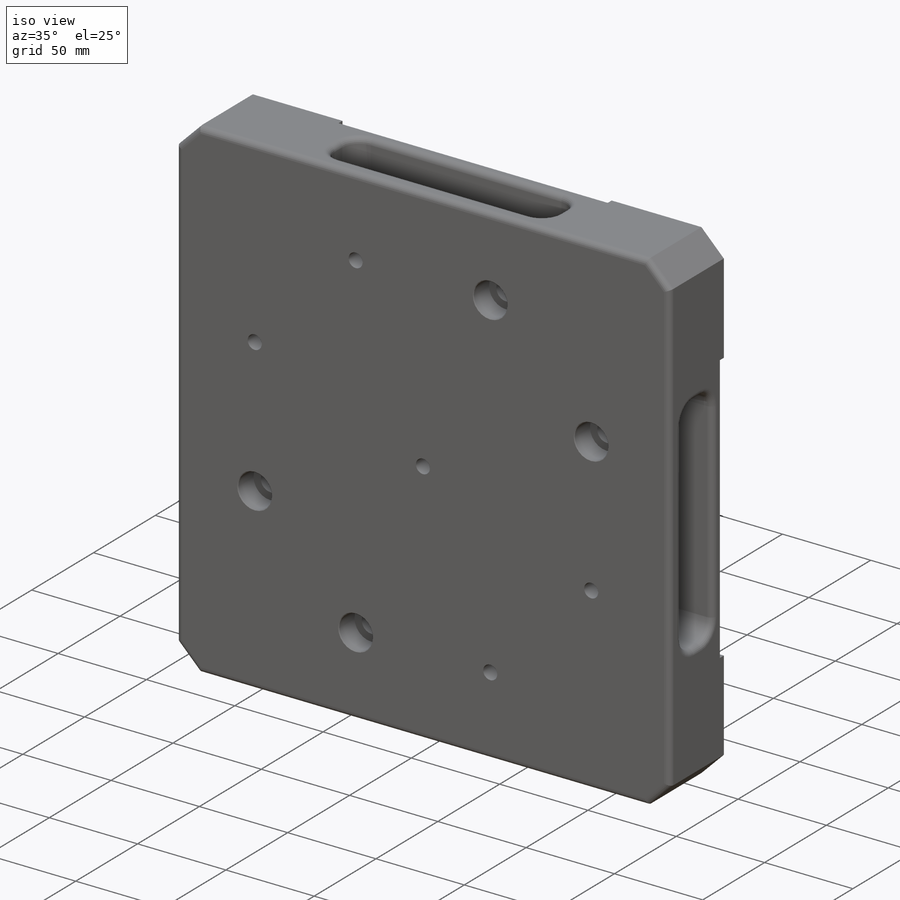
[diagram: iso view]
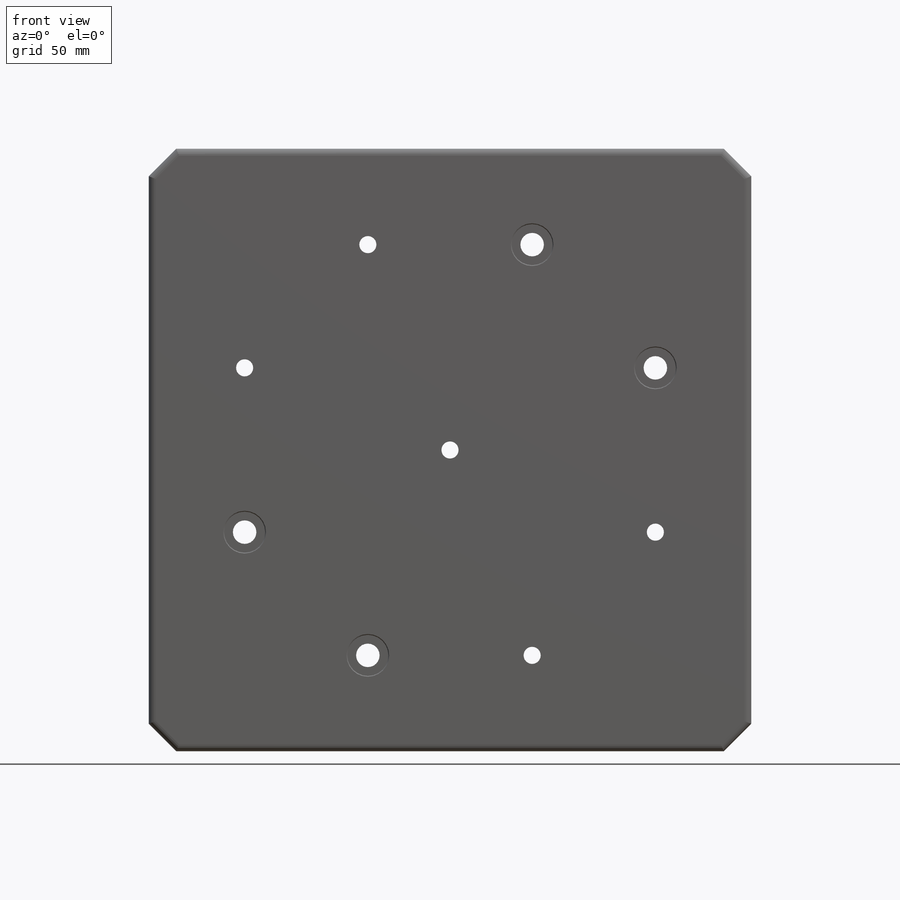
[diagram: front view]
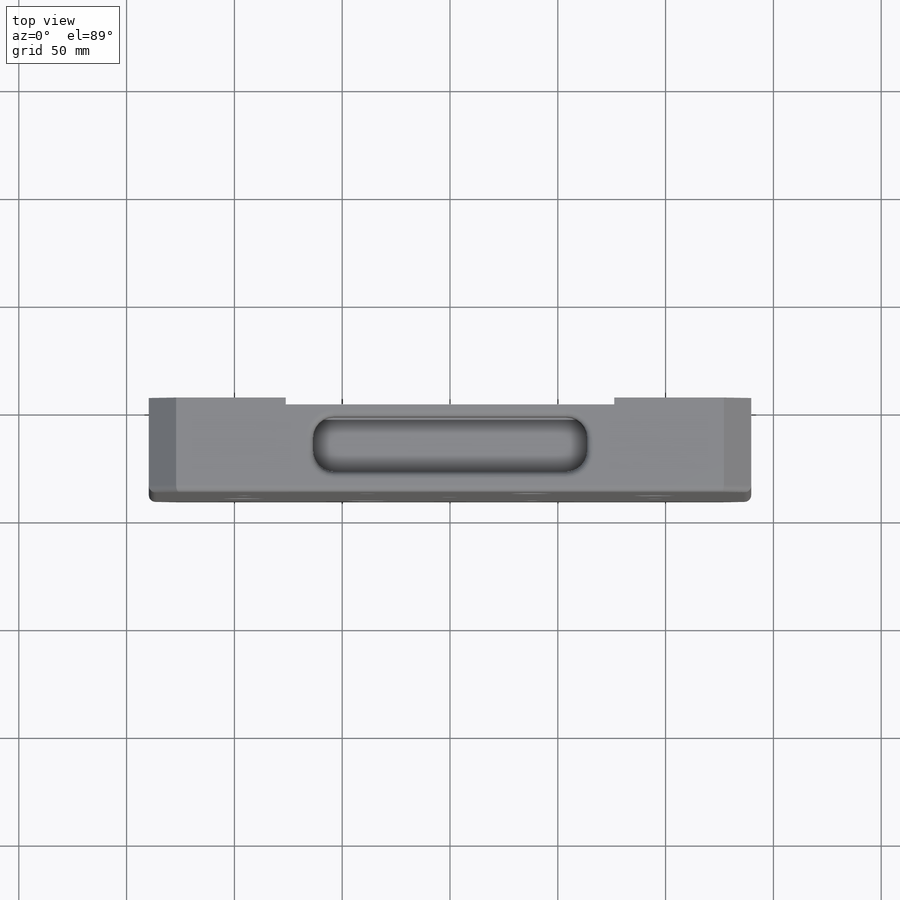
[diagram: top view]
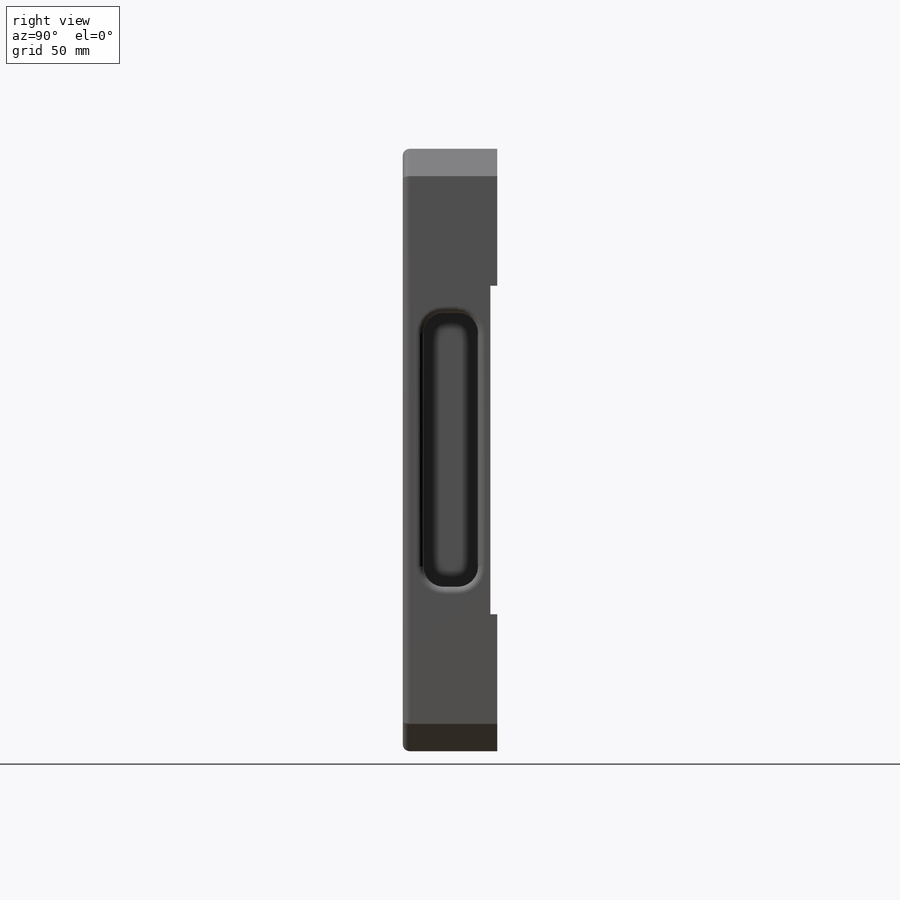
[diagram: right view]
SOLIDWORKS PART (.sldprt)
format: sldprt  version: not decoded by parser v0  size: 476,160 bytes
history: native  units: mm
features: sketch x7, thread x5, extrude x2, hole x2, fillet x2, material x1, cut_extrude x1, pattern_circular x1 + 1 further entry (+14 scaffold rows collapsed)
feature tree (36):
  scaffold x14  (default folders/planes/origin — collapsed)
  material  "304, 316 OR 302 SSTL"
  "Origin"  ID=-1
  sketch  "Sketch1"  dims[D1=279.4mm D2=279.4mm D5=12.7mm D6=12.7mm D7=12.7mm D8=12.7mm]
  extrude  "Boss-Extrude1"  Depth=40.64mm
  sketch  "Sketch2"  dims[D2=0.0254mm D1=63.5mm D4=12.7mm D9=12.7mm D10=12.7mm D11=12.7mm]
  hole  "3/8-16 Tapped Hole1"  Diameter=7.9375mm Depth=40.64mm
  sketch  "Sketch4"  dims[D1=95.25mm D2=38.1mm]
  sketch  "Sketch3"  dims[hole-wizard template sketch: 60 standard entries collapsed; hole parameters kept: c18.Thru Tap Drill Depth=40.64mm]
  thread  "Hole Thread1"  Diameter=9.525mm  [1 undecoded]
  thread  "Hole Thread2"  Diameter=9.525mm  [1 undecoded]
  thread  "Hole Thread3"  Diameter=9.525mm  [1 undecoded]
  thread  "Hole Thread4"  Diameter=9.525mm  [1 undecoded]
  thread  "Hole Thread5"  Diameter=9.525mm  [1 undecoded]
  hole  "CBORE for 3/8 Socket Head Cap Screw1"  Diameter=10.8966mm Depth=40.64mm
  sketch  "Sketch8"  dims[D1=76.2mm]
  sketch  "Sketch7"  dims[hole-wizard template sketch: 41 standard entries collapsed; hole parameters kept: c12.Thru Hole Dia.=10.8966mm c12.Thru Hole Depth=40.64mm c12.C'Bore Dia.=19.05mm c12.C'Bore Depth=12.7mm c12.Near C'Sink Dia.=19.812mm c12.D6=~4.399409mm c12.Near C'Sink Angle=90.0deg c12.Far C'Sink Dia.=11.7348mm c12.D8=~2.963249mm c12.Far C'Sink Angle=90.0deg]
  fillet  "Fillet1"  Radius=3.175mm
  sketch  "Sketch9"  dims[D4=9.525mm D1=127.0mm D2=25.4mm D3=9.525mm]
  cut_extrude  "Cut-Extrude2"  Depth=28.448mm
  fillet  "Fillet2"  Radius=3.175mm
  pattern_circular  "CirPattern1"  Count=4 Angle=90deg
  extrude  "Boss-Extrude2"  Depth=3.175mm
decode coverage: 20 of 20 modeling features carry decoded parameters; 1 rows unclassified (native names shown)
note: ~ marks probable driven/reference dimensions
note: 5 parameter values undecoded
note: suppression state not decoded; provenance and decode notes live in map.json
